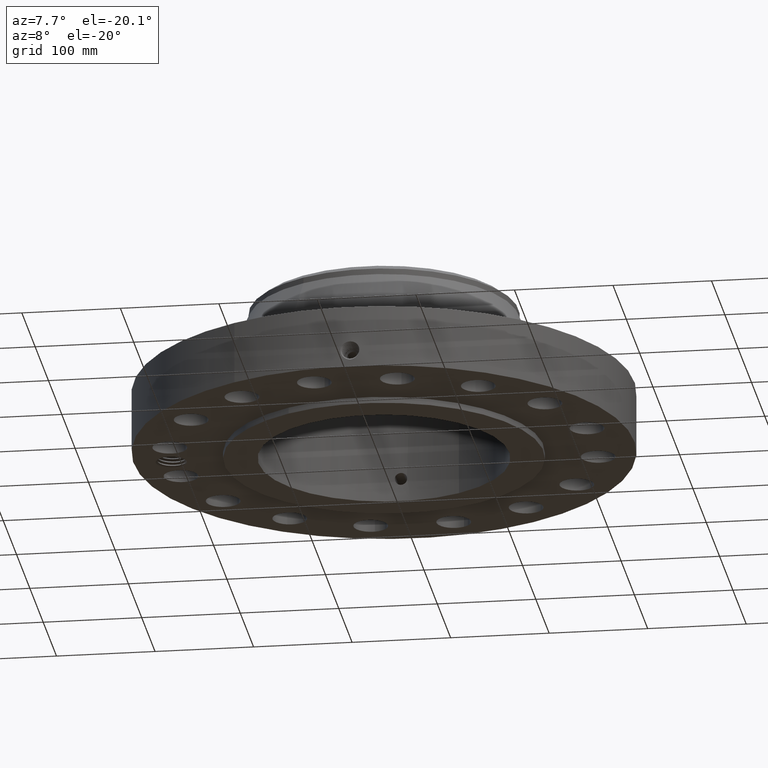
[diagram: clean part render]
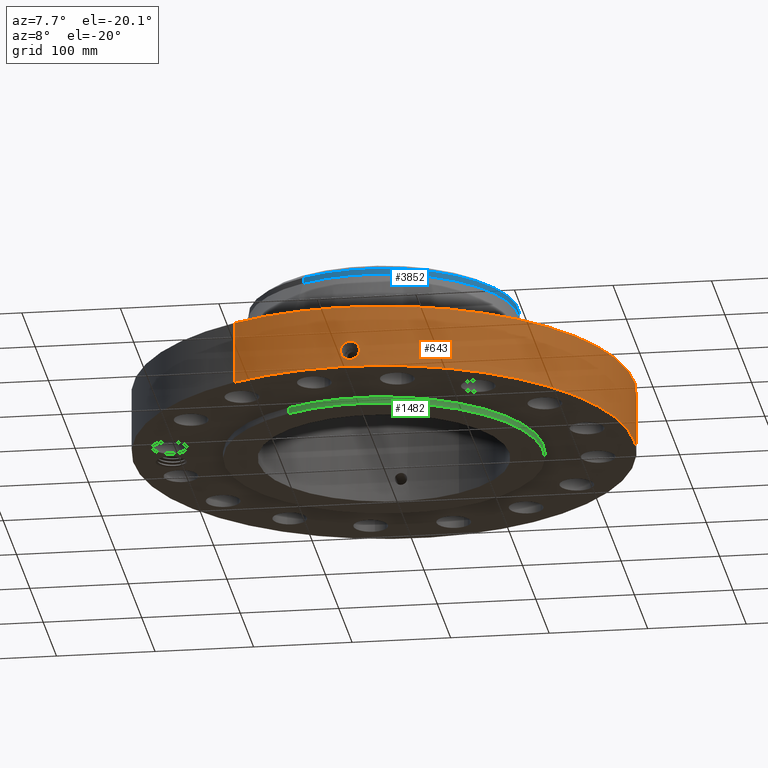
[diagram: same view with three faces highlighted in distinct colors, each labeled with its STEP entity id]
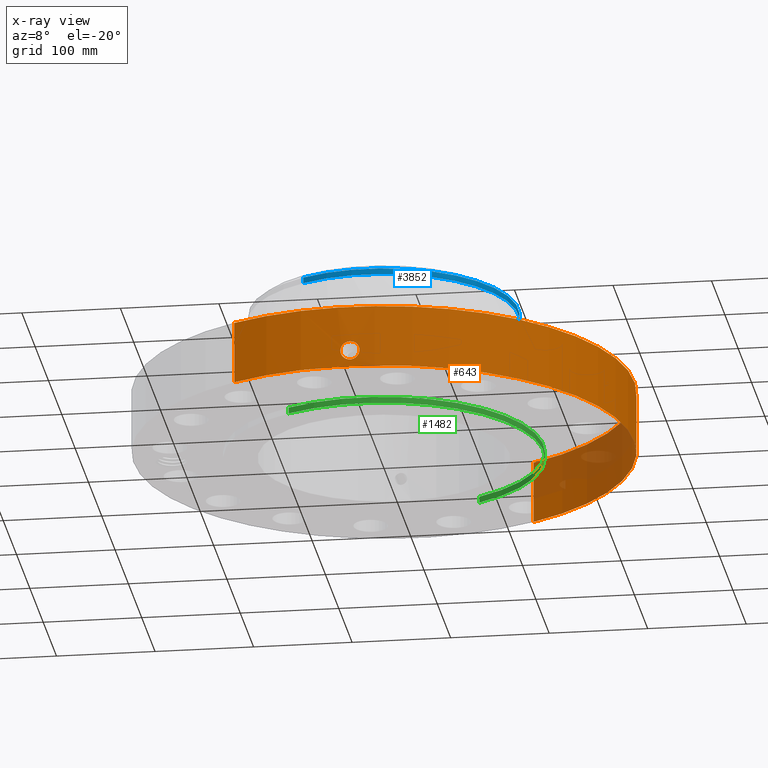
[diagram: x-ray of the same camera — body ghosted, the three highlighted faces saturated]
A machine part, auxiliary view with three faces highlighted in distinct colors.
The next image is the same camera in x-ray (body ghosted, the three faces saturated) — at least one of them is partly hidden behind the body in this view.
Their STEP definitions:

[orange] entity #643 — the highlighted cylindrical surface (partial cylindrical patch) has radius 254 mm, axis along (0, 0, -1).
#38=AXIS2_PLACEMENT_3D('Cylinder Axis2P3D',#35,#36,#37) ;
#169=AXIS2_PLACEMENT_3D('Circle Axis2P3D',#167,#168,$) ;
#547=AXIS2_PLACEMENT_3D('Circle Axis2P3D',#545,#546,$) ;
#35=CARTESIAN_POINT('Axis2P3D Location',(0.,0.,3.12500000001)) ;
#44=CARTESIAN_POINT('Vertex',(-4.79425538606,-8.77582561894,0.250000000001)) ;
#46=CARTESIAN_POINT('Vertex',(4.79425538606,8.77582561894,0.250000000001)) ;
#49=CARTESIAN_POINT('Line Origine',(-4.79425538606,-8.77582561894,1.50000000001)) ;
#53=CARTESIAN_POINT('Vertex',(-4.79425538606,-8.77582561894,2.75000000001)) ;
#60=CARTESIAN_POINT('Vertex',(4.79425538606,8.77582561894,2.75000000001)) ;
#63=CARTESIAN_POINT('Line Origine',(4.79425538606,8.77582561894,1.50000000001)) ;
#167=CARTESIAN_POINT('Axis2P3D Location',(0.,0.,0.250000000001)) ;
#545=CARTESIAN_POINT('Axis2P3D Location',(0.,0.,2.75000000001)) ;
#557=CARTESIAN_POINT('Control Point',(0.0572087903578,-9.99983635642,1.28946211996)) ;
#558=CARTESIAN_POINT('Control Point',(0.0385429305245,-9.99994314329,1.29252128305)) ;
#559=CARTESIAN_POINT('Control Point',(0.0196311006262,-9.99999861993,1.29408017662)) ;
#560=CARTESIAN_POINT('Control Point',(0.000716081786647,-9.9999999744,1.29411849926)) ;
#561=CARTESIAN_POINT('Vertex',(0.0571959374547,-9.99983668649,1.28946450802)) ;
#563=CARTESIAN_POINT('Vertex',(0.000715972764826,-9.99999997441,1.29411850972)) ;
#567=CARTESIAN_POINT('Control Point',(0.0571958405082,-9.99983643049,1.2894639435)) ;
#568=CARTESIAN_POINT('Control Point',(0.0969230263224,-9.9996092038,1.2847577243)) ;
#569=CARTESIAN_POINT('Control Point',(0.135932013826,-9.99914036429,1.27280908331)) ;
#570=CARTESIAN_POINT('Control Point',(0.171781099398,-9.99852445387,1.25447443216)) ;
#571=CARTESIAN_POINT('Vertex',(0.171781099398,-9.99852445387,1.25447443216)) ;
#575=CARTESIAN_POINT('Control Point',(0.0304791095549,-9.99995355113,0.531149434171)) ;
#576=CARTESIAN_POINT('Control Point',(0.0869240682466,-9.99978151112,0.538316765261)) ;
#577=CARTESIAN_POINT('Control Point',(0.141781990786,-9.99921604856,0.55592412374)) ;
#578=CARTESIAN_POINT('Control Point',(0.192346113258,-9.99830847247,0.583484624726)) ;
#579=CARTESIAN_POINT('Control Point',(0.265759526297,-9.99658103479,0.642901876029)) ;
#580=CARTESIAN_POINT('Control Point',(0.317976337823,-9.9949715316,0.71937843165)) ;
#581=CARTESIAN_POINT('Control Point',(0.335086714053,-9.99439872702,0.752047613162)) ;
#582=CARTESIAN_POINT('Control Point',(0.369056282315,-9.99321086053,0.84025223506)) ;
#583=CARTESIAN_POINT('Control Point',(0.376110289053,-9.99291610853,0.934477107163)) ;
#584=CARTESIAN_POINT('Control Point',(0.369959799523,-9.99316023875,0.992001440295)) ;
#585=CARTESIAN_POINT('Control Point',(0.340413446908,-9.99427827024,1.09120350968)) ;
#586=CARTESIAN_POINT('Control Point',(0.280678332315,-9.9961187959,1.17435913731)) ;
#587=CARTESIAN_POINT('Control Point',(0.248537284271,-9.99700573284,1.20702901606)) ;
#588=CARTESIAN_POINT('Control Point',(0.2117722732,-9.99783737971,1.23402135038)) ;
#589=CARTESIAN_POINT('Control Point',(0.171781099398,-9.99852445387,1.25447443216)) ;
#590=CARTESIAN_POINT('Vertex',(0.0304791095549,-9.99995355113,0.531149434171)) ;
#594=CARTESIAN_POINT('Control Point',(0.0304791095549,-9.99995355113,0.531149434171)) ;
#595=CARTESIAN_POINT('Control Point',(0.0203138280101,-9.99998453414,0.530868868491)) ;
#596=CARTESIAN_POINT('Control Point',(0.010142822142,-10.0000000028,0.53094410762)) ;
#597=CARTESIAN_POINT('Control Point',(-2.72878353386E-006,-10.,0.531374667805)) ;
#598=CARTESIAN_POINT('Vertex',(-2.72878354146E-006,-10.,0.531374667805)) ;
#602=CARTESIAN_POINT('Control Point',(-0.193088684827,-9.99813566424,0.586563835071)) ;
#603=CARTESIAN_POINT('Control Point',(-0.149184542097,-9.99898356164,0.561542966678)) ;
#604=CARTESIAN_POINT('Control Point',(-0.101153268022,-9.99965493009,0.543607028524)) ;
#605=CARTESIAN_POINT('Control Point',(-0.0508186828431,-9.99999998617,0.533531210518)) ;
#606=CARTESIAN_POINT('Control Point',(-2.72878353387E-006,-10.,0.531374667805)) ;
#607=CARTESIAN_POINT('Vertex',(-0.193088684827,-9.99813566424,0.586563835071)) ;
#611=CARTESIAN_POINT('Control Point',(-0.193088684827,-9.99813566424,0.586563835071)) ;
#612=CARTESIAN_POINT('Control Point',(-0.222002366083,-9.99757726967,0.603041673934)) ;
#613=CARTESIAN_POINT('Control Point',(-0.249242458524,-9.99694663764,0.62239968763)) ;
#614=CARTESIAN_POINT('Control Point',(-0.274404324253,-9.9962756441,0.644458262421)) ;
#615=CARTESIAN_POINT('Control Point',(-0.341053091538,-9.99430729828,0.71642795203)) ;
#616=CARTESIAN_POINT('Control Point',(-0.383384402227,-9.99268352973,0.806296315228)) ;
#617=CARTESIAN_POINT('Control Point',(-0.398208488589,-9.992055228,0.870788230883)) ;
#618=CARTESIAN_POINT('Control Point',(-0.398820868104,-9.9920728064,0.997725505459)) ;
#619=CARTESIAN_POINT('Control Point',(-0.349108773991,-9.99395183229,1.11278780639)) ;
#620=CARTESIAN_POINT('Control Point',(-0.314057457435,-9.99519357458,1.16248017222)) ;
#621=CARTESIAN_POINT('Control Point',(-0.235623947198,-9.99747709452,1.23687454099)) ;
#622=CARTESIAN_POINT('Control Point',(-0.138518371338,-9.99918909735,1.27948531937)) ;
#623=CARTESIAN_POINT('Control Point',(-0.0927588070738,-9.99973433444,1.29155503955)) ;
#624=CARTESIAN_POINT('Control Point',(-0.0460961964379,-10.0000001193,1.29641422489)) ;
#625=CARTESIAN_POINT('Control Point',(2.58579355381E-005,-10.,1.29415298432)) ;
#626=CARTESIAN_POINT('Vertex',(2.5857935539E-005,-10.,1.29415298432)) ;
#630=CARTESIAN_POINT('Control Point',(0.000715972754869,-9.99999997441,1.2941185097)) ;
#631=CARTESIAN_POINT('Control Point',(0.000370939523204,-9.99999999911,1.29413606591)) ;
#632=CARTESIAN_POINT('Control Point',(2.58579410707E-005,-10.,1.29415298431)) ;
#36=DIRECTION('Axis2P3D Direction',(0.,0.,-0.0393700787402)) ;
#37=DIRECTION('Axis2P3D XDirection',(0.0188750212049,0.0345504945626,0.)) ;
#50=DIRECTION('Vector Direction',(0.,0.,-0.0393700787402)) ;
#64=DIRECTION('Vector Direction',(0.,0.,-0.0393700787402)) ;
#168=DIRECTION('Axis2P3D Direction',(0.,0.,-0.0393700787402)) ;
#546=DIRECTION('Axis2P3D Direction',(0.,0.,-0.0393700787402)) ;
#51=VECTOR('Line Direction',#50,0.0393700787402) ;
#65=VECTOR('Line Direction',#64,0.0393700787402) ;
#551=ORIENTED_EDGE('',*,*,#171,.F.) ;
#552=ORIENTED_EDGE('',*,*,#67,.T.) ;
#553=ORIENTED_EDGE('',*,*,#549,.T.) ;
#554=ORIENTED_EDGE('',*,*,#55,.F.) ;
#635=ORIENTED_EDGE('',*,*,#565,.F.) ;
#636=ORIENTED_EDGE('',*,*,#573,.T.) ;
#637=ORIENTED_EDGE('',*,*,#592,.F.) ;
#638=ORIENTED_EDGE('',*,*,#600,.T.) ;
#639=ORIENTED_EDGE('',*,*,#609,.F.) ;
#640=ORIENTED_EDGE('',*,*,#628,.T.) ;
#641=ORIENTED_EDGE('',*,*,#633,.F.) ;
#642=FACE_BOUND('',#634,.T.) ;
#643=ADVANCED_FACE('PartBody',(#555,#642),#39,.T.) ;
#556=B_SPLINE_CURVE_WITH_KNOTS('',3,(#557,#558,#559,#560),.UNSPECIFIED.,.F.,.U.,(4,4),(4.42284677494,6.52129611742),.UNSPECIFIED.) ;
#566=B_SPLINE_CURVE_WITH_KNOTS('',3,(#567,#568,#569,#570),.UNSPECIFIED.,.F.,.U.,(4,4),(0.,4.49502347421),.UNSPECIFIED.) ;
#574=B_SPLINE_CURVE_WITH_KNOTS('',5,(#575,#576,#577,#578,#579,#580,#581,#582,#583,#584,#585,#586,#587,#588,#589),.UNSPECIFIED.,.F.,.U.,(6,3,3,3,6),(0.,9.88848365935,16.4590866087,26.8430280861,35.2003434405),.UNSPECIFIED.) ;
#593=B_SPLINE_CURVE_WITH_KNOTS('',3,(#594,#595,#596,#597),.UNSPECIFIED.,.F.,.U.,(4,4),(0.,1.0603287254),.UNSPECIFIED.) ;
#601=B_SPLINE_CURVE_WITH_KNOTS('',4,(#602,#603,#604,#605,#606),.UNSPECIFIED.,.F.,.U.,(5,5),(0.,7.08114865506),.UNSPECIFIED.) ;
#610=B_SPLINE_CURVE_WITH_KNOTS('',5,(#611,#612,#613,#614,#615,#616,#617,#618,#619,#620,#621,#622,#623,#624,#625),.UNSPECIFIED.,.F.,.U.,(6,3,3,3,6),(0.,5.8292355991,17.1276621469,27.7869785466,36.4081471821),.UNSPECIFIED.) ;
#629=B_SPLINE_CURVE_WITH_KNOTS('',2,(#630,#631,#632),.UNSPECIFIED.,.F.,.U.,(3,3),(1.03888409227,1.06468525564),.UNSPECIFIED.) ;
#170=CIRCLE('generated circle',#169,10.) ;
#548=CIRCLE('generated circle',#547,10.) ;
#39=CYLINDRICAL_SURFACE('generated cylinder',#38,10.) ;
#55=EDGE_CURVE('',#45,#54,#52,.F.) ;
#67=EDGE_CURVE('',#47,#61,#66,.F.) ;
#171=EDGE_CURVE('',#47,#45,#170,.T.) ;
#549=EDGE_CURVE('',#61,#54,#548,.T.) ;
#565=EDGE_CURVE('',#562,#564,#556,.T.) ;
#573=EDGE_CURVE('',#562,#572,#566,.T.) ;
#592=EDGE_CURVE('',#591,#572,#574,.T.) ;
#600=EDGE_CURVE('',#591,#599,#593,.T.) ;
#609=EDGE_CURVE('',#608,#599,#601,.T.) ;
#628=EDGE_CURVE('',#608,#627,#610,.T.) ;
#633=EDGE_CURVE('',#564,#627,#629,.T.) ;
#550=EDGE_LOOP('',(#551,#552,#553,#554)) ;
#634=EDGE_LOOP('',(#635,#636,#637,#638,#639,#640,#641)) ;
#555=FACE_OUTER_BOUND('',#550,.T.) ;
#52=LINE('Line',#49,#51) ;
#66=LINE('Line',#63,#65) ;
#45=VERTEX_POINT('',#44) ;
#47=VERTEX_POINT('',#46) ;
#54=VERTEX_POINT('',#53) ;
#61=VERTEX_POINT('',#60) ;
#562=VERTEX_POINT('',#561) ;
#564=VERTEX_POINT('',#563) ;
#572=VERTEX_POINT('',#571) ;
#591=VERTEX_POINT('',#590) ;
#599=VERTEX_POINT('',#598) ;
#608=VERTEX_POINT('',#607) ;
#627=VERTEX_POINT('',#626) ;

[blue] entity #3852 — the highlighted cylindrical surface (partial cylindrical patch) has radius 136.525 mm, axis along (0, 0, -1).
#3041=AXIS2_PLACEMENT_3D('Circle Axis2P3D',#3039,#3040,$) ;
#3817=AXIS2_PLACEMENT_3D('Cylinder Axis2P3D',#3814,#3815,#3816) ;
#3835=AXIS2_PLACEMENT_3D('Circle Axis2P3D',#3833,#3834,$) ;
#3842=AXIS2_PLACEMENT_3D('Circle Axis2P3D',#3840,#3841,$) ;
#3036=CARTESIAN_POINT('Vertex',(2.57691227001,4.71700627018,5.79412462484)) ;
#3039=CARTESIAN_POINT('Axis2P3D Location',(0.,0.,5.79412462484)) ;
#3043=CARTESIAN_POINT('Vertex',(-2.57691227001,-4.71700627018,5.79412462484)) ;
#3814=CARTESIAN_POINT('Axis2P3D Location',(0.,0.,3.12500000001)) ;
#3819=CARTESIAN_POINT('Line Origine',(-2.57691227001,-4.71700627018,5.91223486106)) ;
#3823=CARTESIAN_POINT('Vertex',(-2.57691227001,-4.71700627018,6.03034509728)) ;
#3826=CARTESIAN_POINT('Line Origine',(2.57691227001,4.71700627018,5.91223486106)) ;
#3830=CARTESIAN_POINT('Vertex',(2.57691227001,4.71700627018,6.03034509728)) ;
#3833=CARTESIAN_POINT('Axis2P3D Location',(0.,0.,6.03034509728)) ;
#3837=CARTESIAN_POINT('Vertex',(2.57691227001,-4.71700627018,6.03034509728)) ;
#3840=CARTESIAN_POINT('Axis2P3D Location',(0.,0.,6.03034509728)) ;
#3040=DIRECTION('Axis2P3D Direction',(0.,0.,-0.0393700787402)) ;
#3815=DIRECTION('Axis2P3D Direction',(0.,0.,-0.0393700787402)) ;
#3816=DIRECTION('Axis2P3D XDirection',(-0.0188750212049,-0.0345504945626,0.)) ;
#3820=DIRECTION('Vector Direction',(0.,0.,-0.0393700787402)) ;
#3827=DIRECTION('Vector Direction',(0.,0.,-0.0393700787402)) ;
#3834=DIRECTION('Axis2P3D Direction',(0.,0.,-0.0393700787402)) ;
#3841=DIRECTION('Axis2P3D Direction',(0.,0.,-0.0393700787402)) ;
#3821=VECTOR('Line Direction',#3820,0.0393700787402) ;
#3828=VECTOR('Line Direction',#3827,0.0393700787402) ;
#3846=ORIENTED_EDGE('',*,*,#3825,.F.) ;
#3847=ORIENTED_EDGE('',*,*,#3045,.F.) ;
#3848=ORIENTED_EDGE('',*,*,#3832,.T.) ;
#3849=ORIENTED_EDGE('',*,*,#3839,.F.) ;
#3850=ORIENTED_EDGE('',*,*,#3844,.T.) ;
#3852=ADVANCED_FACE('PartBody',(#3851),#3818,.T.) ;
#3042=CIRCLE('generated circle',#3041,5.37500000002) ;
#3836=CIRCLE('generated circle',#3835,5.37500000002) ;
#3843=CIRCLE('generated circle',#3842,5.37500000002) ;
#3818=CYLINDRICAL_SURFACE('generated cylinder',#3817,5.37500000002) ;
#3045=EDGE_CURVE('',#3037,#3044,#3042,.T.) ;
#3825=EDGE_CURVE('',#3044,#3824,#3822,.F.) ;
#3832=EDGE_CURVE('',#3037,#3831,#3829,.F.) ;
#3839=EDGE_CURVE('',#3838,#3831,#3836,.F.) ;
#3844=EDGE_CURVE('',#3838,#3824,#3843,.T.) ;
#3845=EDGE_LOOP('',(#3846,#3847,#3848,#3849,#3850)) ;
#3851=FACE_OUTER_BOUND('',#3845,.T.) ;
#3822=LINE('Line',#3819,#3821) ;
#3829=LINE('Line',#3826,#3828) ;
#3037=VERTEX_POINT('',#3036) ;
#3044=VERTEX_POINT('',#3043) ;
#3824=VERTEX_POINT('',#3823) ;
#3831=VERTEX_POINT('',#3830) ;
#3838=VERTEX_POINT('',#3837) ;

[green] entity #1482 — the highlighted cylindrical surface (partial cylindrical patch) has radius 161.925 mm, axis along (0, 0, -1).
#258=AXIS2_PLACEMENT_3D('Circle Axis2P3D',#256,#257,$) ;
#1455=AXIS2_PLACEMENT_3D('Cylinder Axis2P3D',#1452,#1453,#1454) ;
#1459=AXIS2_PLACEMENT_3D('Circle Axis2P3D',#1457,#1458,$) ;
#256=CARTESIAN_POINT('Axis2P3D Location',(0.,0.,0.250000000001)) ;
#260=CARTESIAN_POINT('Vertex',(3.05633780861,5.59458883207,0.250000000001)) ;
#262=CARTESIAN_POINT('Vertex',(-3.05633780861,-5.59458883207,0.250000000001)) ;
#1452=CARTESIAN_POINT('Axis2P3D Location',(0.,0.,3.12500000001)) ;
#1457=CARTESIAN_POINT('Axis2P3D Location',(0.,0.,5.59482469102E-016)) ;
#1461=CARTESIAN_POINT('Vertex',(3.05633780861,5.59458883207,5.59482469102E-016)) ;
#1463=CARTESIAN_POINT('Vertex',(-3.05633780861,-5.59458883207,5.59482469102E-016)) ;
#1466=CARTESIAN_POINT('Line Origine',(3.05633780861,5.59458883207,0.125000000001)) ;
#1471=CARTESIAN_POINT('Line Origine',(-3.05633780861,-5.59458883207,0.125000000001)) ;
#257=DIRECTION('Axis2P3D Direction',(0.,0.,-0.0393700787402)) ;
#1453=DIRECTION('Axis2P3D Direction',(0.,0.,-0.0393700787402)) ;
#1454=DIRECTION('Axis2P3D XDirection',(-0.0188750212049,-0.0345504945626,0.)) ;
#1458=DIRECTION('Axis2P3D Direction',(0.,0.,-0.0393700787402)) ;
#1467=DIRECTION('Vector Direction',(0.,0.,-0.0393700787402)) ;
#1472=DIRECTION('Vector Direction',(0.,0.,-0.0393700787402)) ;
#1468=VECTOR('Line Direction',#1467,0.0393700787402) ;
#1473=VECTOR('Line Direction',#1472,0.0393700787402) ;
#1477=ORIENTED_EDGE('',*,*,#1465,.F.) ;
#1478=ORIENTED_EDGE('',*,*,#1470,.T.) ;
#1479=ORIENTED_EDGE('',*,*,#264,.T.) ;
#1480=ORIENTED_EDGE('',*,*,#1475,.F.) ;
#1482=ADVANCED_FACE('PartBody',(#1481),#1456,.T.) ;
#259=CIRCLE('generated circle',#258,6.37500000003) ;
#1460=CIRCLE('generated circle',#1459,6.37500000003) ;
#1456=CYLINDRICAL_SURFACE('generated cylinder',#1455,6.37500000003) ;
#264=EDGE_CURVE('',#261,#263,#259,.T.) ;
#1465=EDGE_CURVE('',#1462,#1464,#1460,.T.) ;
#1470=EDGE_CURVE('',#1462,#261,#1469,.F.) ;
#1475=EDGE_CURVE('',#1464,#263,#1474,.F.) ;
#1476=EDGE_LOOP('',(#1477,#1478,#1479,#1480)) ;
#1481=FACE_OUTER_BOUND('',#1476,.T.) ;
#1469=LINE('Line',#1466,#1468) ;
#1474=LINE('Line',#1471,#1473) ;
#261=VERTEX_POINT('',#260) ;
#263=VERTEX_POINT('',#262) ;
#1462=VERTEX_POINT('',#1461) ;
#1464=VERTEX_POINT('',#1463) ;